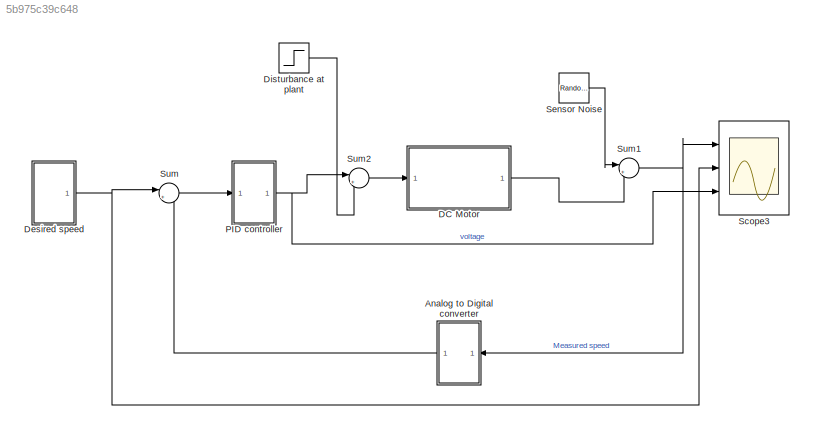
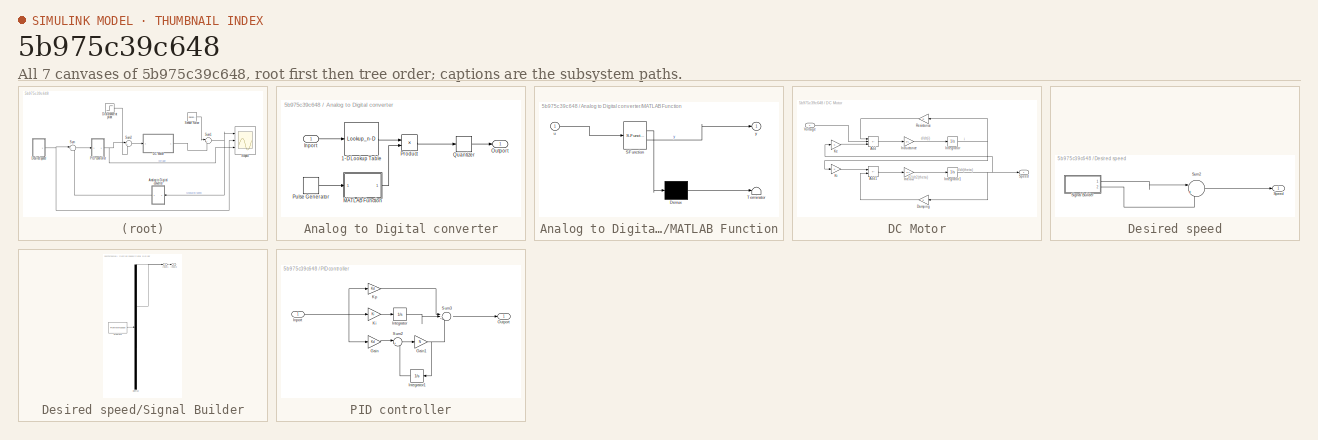
[diagram: thumbnail index - all 7 canvases of the model, root first then tree order]
MODEL slx_5b975c39c648
KIND model
CONFIG AbsTol = auto
CONFIG EnableMultiTasking = off
CONFIG FixedStep = auto
CONFIG MaxStep = auto
CONFIG MinStep = auto
CONFIG PostLoadFcn = Kp=17.9947607768602;\nKi=41.8923134387203;\nKd=-0.685067684451754;\nN=3.3394404818866;\n\n
CONFIG RelTol = 1e-3
CONFIG SampleTimeConstraint = Unconstrained
CONFIG SolverName = ode45
CONFIG StartTime = 0.0
CONFIG StopTime = 10.0
WORKSPACE source: mxarray member
WORKSPACE J: Simulink.Parameter (value not decoded)
WORKSPACE K: Simulink.Parameter (value not decoded)
WORKSPACE Kd: Simulink.Parameter (value not decoded)
WORKSPACE Ki: Simulink.Parameter (value not decoded)
WORKSPACE Kp: Simulink.Parameter (value not decoded)
WORKSPACE L: Simulink.Parameter (value not decoded)
WORKSPACE N: Simulink.Parameter (value not decoded)
WORKSPACE R: Simulink.Parameter (value not decoded)
WORKSPACE b: Simulink.Parameter (value not decoded)
BLOCK [SubSystem] Analog to Digital converter
  NameLocation = top
  Ports = [1, 1]
  RequestExecContextInheritance = off
BLOCK [Lookup_n-D] Analog to Digital converter/1-D Lookup Table
  BreakpointsForDimension1 = [5 6 7]
  InputPortMap = u0
  InternalRulePriority = Speed
  NumberOfTableDimensions = 1
  Ports = [1, 1]
  RndMeth = Simplest
  Table = [2 3 4]
BLOCK [Inport] Analog to Digital converter/Inport
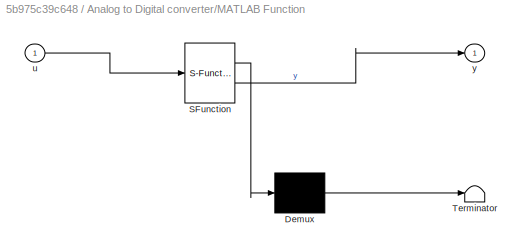
BLOCK [SubSystem] Analog to Digital converter/MATLAB Function
  ErrorFcn = Stateflow.Translate.translate
  PermitHierarchicalResolution = ExplicitOnly
  Ports = [1, 1]
  RequestExecContextInheritance = off
  SFBlockType = MATLAB Function
  TreatAsAtomicUnit = on
BLOCK [Demux] Analog to Digital converter/MATLAB Function/ Demux 
  Outputs = 1
  Ports = [1, 1]
BLOCK [S-Function] Analog to Digital converter/MATLAB Function/ SFunction 
  EnableBusSupport = on
  FunctionName = sf_sfun
  PortCounts = [1 2]
  Ports = [1, 2]
  SFcnIsStateOwnerBlock = off
  SFunctionDeploymentMode = off
  Tag = Stateflow S-Function 2
BLOCK [Terminator] Analog to Digital converter/MATLAB Function/ Terminator 
BLOCK [Inport] Analog to Digital converter/MATLAB Function/u
BLOCK [Outport] Analog to Digital converter/MATLAB Function/y
BLOCK [Outport] Analog to Digital converter/Outport
BLOCK [Product] Analog to Digital converter/Product
  Ports = [2, 1]
BLOCK [DiscretePulseGenerator] Analog to Digital converter/Pulse Generator
  Amplitude = 10
  Period = 0.2
  PhaseDelay = 0.5
  Ports = [0, 1]
  PulseType = Time based
  PulseWidth = 2
BLOCK [Quantizer] Analog to Digital converter/Quantizer
  QuantizationInterval = 1
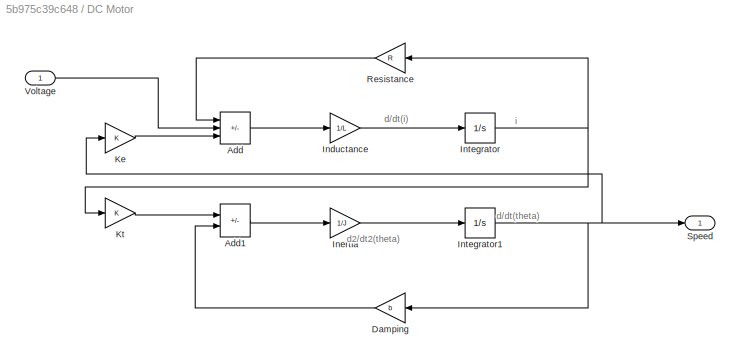
BLOCK [SubSystem] DC Motor
  Ports = [1, 1]
  RequestExecContextInheritance = off
BLOCK [Sum] DC Motor/Add
  IconShape = rectangular
  Inputs = -+-
  Ports = [3, 1]
BLOCK [Sum] DC Motor/Add1
  IconShape = rectangular
  Inputs = +-
  Ports = [2, 1]
BLOCK [Gain] DC Motor/Damping
  Gain = b
BLOCK [Gain] DC Motor/Inductance
  Gain = 1/L
BLOCK [Gain] DC Motor/Inertia
  Gain = 1/J
BLOCK [Integrator] DC Motor/Integrator
  Ports = [1, 1]
BLOCK [Integrator] DC Motor/Integrator1
  Ports = [1, 1]
BLOCK [Gain] DC Motor/Ke
  Gain = K
BLOCK [Gain] DC Motor/Kt
  Gain = K
BLOCK [Gain] DC Motor/Resistance
  Gain = R
BLOCK [Outport] DC Motor/Speed
BLOCK [Inport] DC Motor/Voltage
BLOCK [SubSystem] Desired speed
  Ports = [0, 1]
  RequestExecContextInheritance = off
BLOCK [SubSystem] Desired speed/Signal Builder
  ClipboardFcn = sigbuilder_block('clipboard');
  CloseFcn = sigbuilder_block('close');
  ContinueFcn = sigbuilder_block('continue');
  CopyFcn = sigbuilder_block('copy');
  DeleteFcn = sigbuilder_block('delete');
  LoadFcn = sigbuilder_block('load');
  MaskHideContents = on
  ModelCloseFcn = sigbuilder_block('modelClose');
  NameChangeFcn = sigbuilder_block('namechange');
  OpenFcn = sigbuilder_block('open',[404 117.5 550.5 362.5 ]);
  PauseFcn = sigbuilder_block('pause');
  Ports = [0, 2]
  PreSaveFcn = sigbuilder_block('preSave');
  RequestExecContextInheritance = off
  StartFcn = sigbuilder_block('start');
  StopFcn = sigbuilder_block('stop');
  Tag = STV Subsys
BLOCK [Demux] Desired speed/Signal Builder/Demux
  DisplayOption = none
  Outputs = 2
  Ports = [1, 2]
  Tag = STV Demux
BLOCK [FromWorkspace] Desired speed/Signal Builder/FromWs
  Tag = STV FromWs
  VariableName = tuvar
BLOCK [Outport] Desired speed/Signal Builder/Input1
  Tag = STV Outport
BLOCK [Outport] Desired speed/Signal Builder/Input2
  Port = 2
  Tag = STV Outport
BLOCK [Outport] Desired speed/Speed
BLOCK [Sum] Desired speed/Sum2
  Inputs = |++
  Ports = [2, 1]
BLOCK [Step] Disturbance at plant
  SampleTime = 0
BLOCK [SubSystem] PID controller
  Ports = [1, 1]
  RequestExecContextInheritance = off
BLOCK [Gain] PID controller/Gain
  Gain = Kd
BLOCK [Gain] PID controller/Gain1
  Gain = N
BLOCK [Inport] PID controller/Inport
BLOCK [Integrator] PID controller/Integrator
  Ports = [1, 1]
BLOCK [Integrator] PID controller/Integrator1
  NameLocation = top
  Ports = [1, 1]
BLOCK [Gain] PID controller/Ki
  Gain = Ki
BLOCK [Gain] PID controller/Kp
  Gain = Kd
BLOCK [Outport] PID controller/Outport
BLOCK [Sum] PID controller/Sum2
  Inputs = |+-
  Ports = [2, 1]
BLOCK [Sum] PID controller/Sum3
  Inputs = |+++
  NameLocation = top
  Ports = [3, 1]
BLOCK [Scope] Scope3
  Floating = off
  NumInputPorts = 3
  Ports = [3]
  ScopeSpecificationString = Simulink.scopes.TimeScopeBlockCfg('CurrentConfiguration', extmgr.ConfigurationSet(extmgr.Configuration('Core','General UI',true),extmgr.Configuration('Core','Source UI',true),extmgr.Configuration('Sources','WiredSimulink',true,'DataLoggingVariableName','ScopeData3'),extmgr.Configuration('Visuals','Time Domain',true,'SerializedDisplays',{struct('MinYLimReal','-5.9905','MaxYLimReal','39.81749','YLab...<+2759ch>
BLOCK [RandomNumber] Sensor Noise
  SampleTime = 0.1
BLOCK [Sum] Sum
  Inputs = |+-
  Ports = [2, 1]
BLOCK [Sum] Sum1
  Inputs = |++
  Ports = [2, 1]
BLOCK [Sum] Sum2
  Inputs = |++
  Ports = [2, 1]
ANNOTATION DC Motor: d/dt(i)
ANNOTATION DC Motor: d/dt(theta)
ANNOTATION DC Motor: d2/dt2(theta)
ANNOTATION DC Motor: i
LINE Analog to Digital converter/1-D Lookup Table:1 -> Analog to Digital converter/Product:1
LINE Analog to Digital converter/Inport:1 -> Analog to Digital converter/1-D Lookup Table:1
LINE Analog to Digital converter/MATLAB Function:1 -> Analog to Digital converter/Product:2
LINE Analog to Digital converter/Product:1 -> Analog to Digital converter/Quantizer:1
LINE Analog to Digital converter/Pulse Generator:1 -> Analog to Digital converter/MATLAB Function:1
LINE Analog to Digital converter/Quantizer:1 -> Analog to Digital converter/Outport:1
LINE Analog to Digital converter:1 -> Sum:2
LINE DC Motor/Add1:1 -> DC Motor/Inertia:1
LINE DC Motor/Add:1 -> DC Motor/Inductance:1
LINE DC Motor/Damping:1 -> DC Motor/Add1:2
LINE DC Motor/Inductance:1 -> DC Motor/Integrator:1
LINE DC Motor/Inertia:1 -> DC Motor/Integrator1:1
NET DC Motor/Integrator1:1 -> DC Motor/Damping:1, DC Motor/Ke:1, DC Motor/Speed:1
NET DC Motor/Integrator:1 -> DC Motor/Kt:1, DC Motor/Resistance:1
LINE DC Motor/Ke:1 -> DC Motor/Add:3
LINE DC Motor/Kt:1 -> DC Motor/Add1:1
LINE DC Motor/Resistance:1 -> DC Motor/Add:1
LINE DC Motor/Voltage:1 -> DC Motor/Add:2
LINE DC Motor:1 -> Sum1:2
LINE Desired speed/Signal Builder:1 -> Desired speed/Sum2:1
LINE Desired speed/Signal Builder:2 -> Desired speed/Sum2:2
LINE Desired speed/Sum2:1 -> Desired speed/Speed:1
NET Desired speed:1 -> Scope3:2, Sum:1
LINE Disturbance at plant:1 -> Sum2:2
NET PID controller/Gain1:1 -> PID controller/Integrator1:1, PID controller/Sum3:3
LINE PID controller/Gain:1 -> PID controller/Sum2:1
NET PID controller/Inport:1 -> PID controller/Gain:1, PID controller/Ki:1, PID controller/Kp:1
LINE PID controller/Integrator1:1 -> PID controller/Sum2:2
LINE PID controller/Integrator:1 -> PID controller/Sum3:2
LINE PID controller/Ki:1 -> PID controller/Integrator:1
LINE PID controller/Kp:1 -> PID controller/Sum3:1
LINE PID controller/Sum2:1 -> PID controller/Gain1:1
LINE PID controller/Sum3:1 -> PID controller/Outport:1
NET PID controller:1 -> Scope3:3, Sum2:1
LINE Sensor Noise:1 -> Sum1:1
NET Sum1:1 -> Analog to Digital converter:1, Scope3:1
LINE Sum2:1 -> DC Motor:1
LINE Sum:1 -> PID controller:1
note: NET lines group one-source signal fan-out (src -> all destinations, sorted); 1:1 wires keep LINE
CHART Analog to Digital converter/MATLAB Function states=1 transitions=1
  STATE_LABEL 'eML_blk_kernel()'
  STATE_LABEL 'SCRIPT:\nfunction y = fcn(u)\nif(u>1)\n    y=1;\nelse\n    y=0;\nend\nend\n\n'
CHART  states=0 transitions=0
